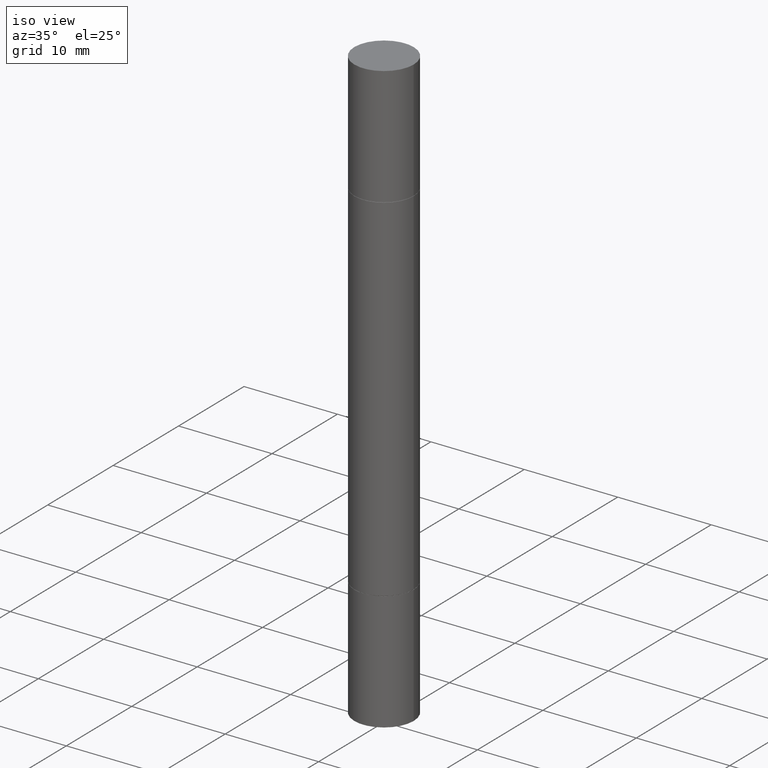
[diagram: clean part render]
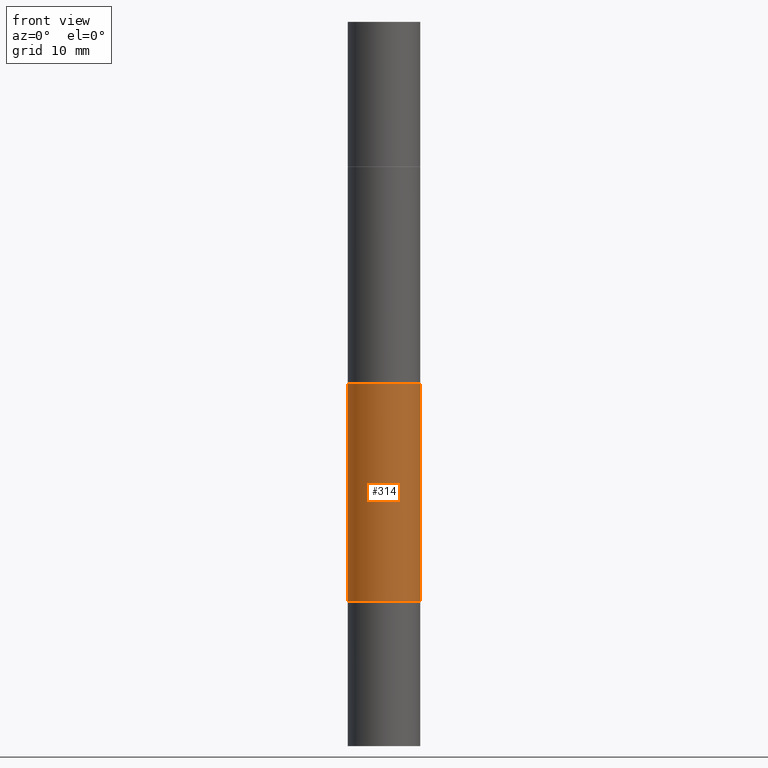
[diagram: tour spotlight — one face highlighted and labeled with its STEP entity id]
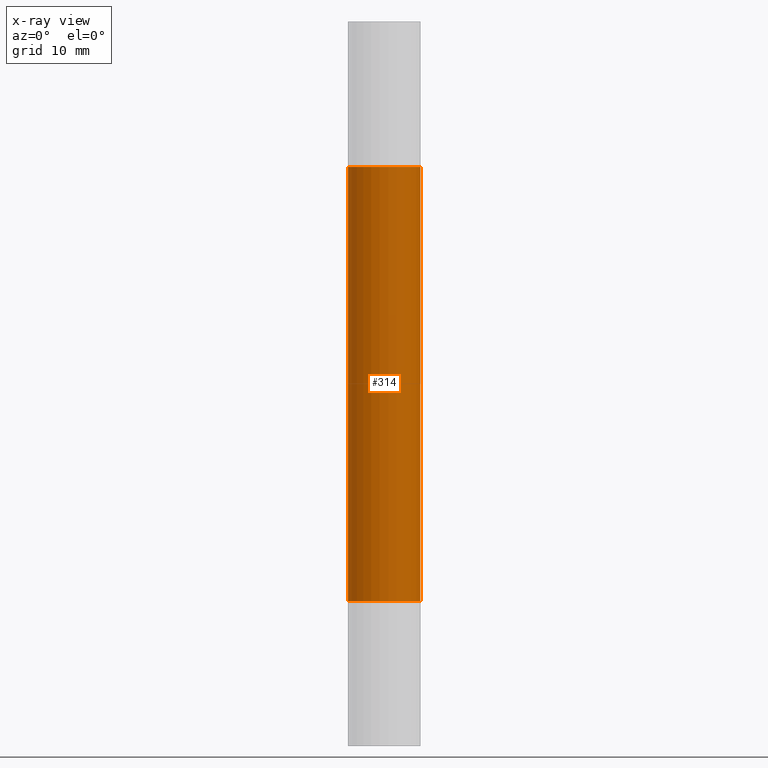
[diagram: x-ray of the same camera — body ghosted, this tour face saturated]
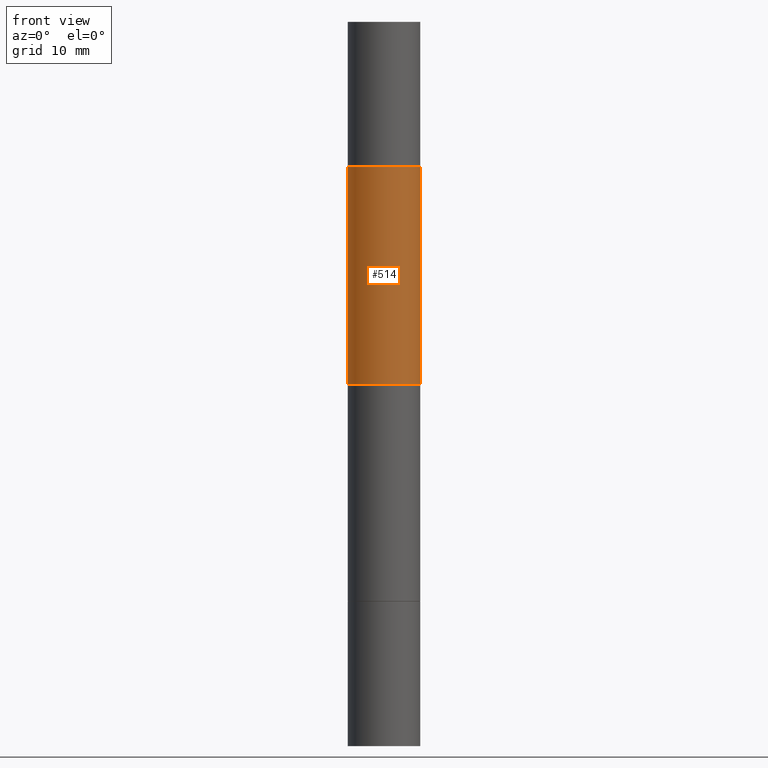
[diagram: tour spotlight — one face highlighted and labeled with its STEP entity id]
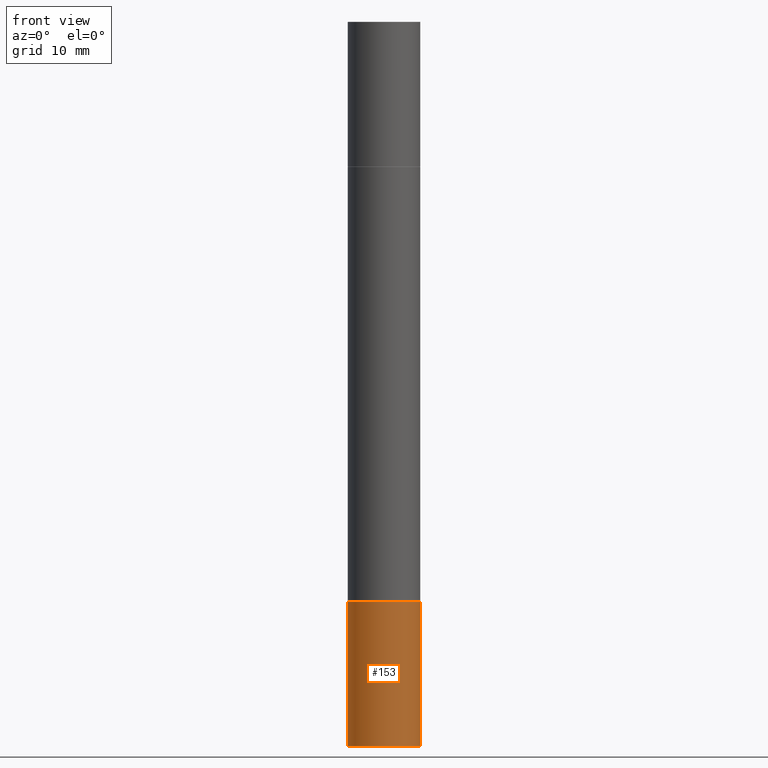
[diagram: tour spotlight — one face highlighted and labeled with its STEP entity id]
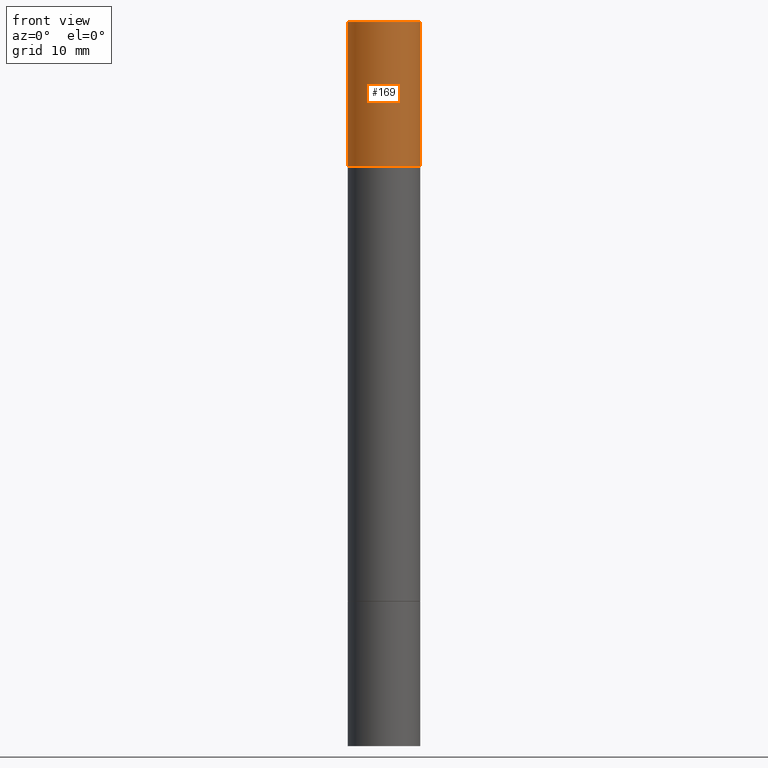
[diagram: tour spotlight — one face highlighted and labeled with its STEP entity id]
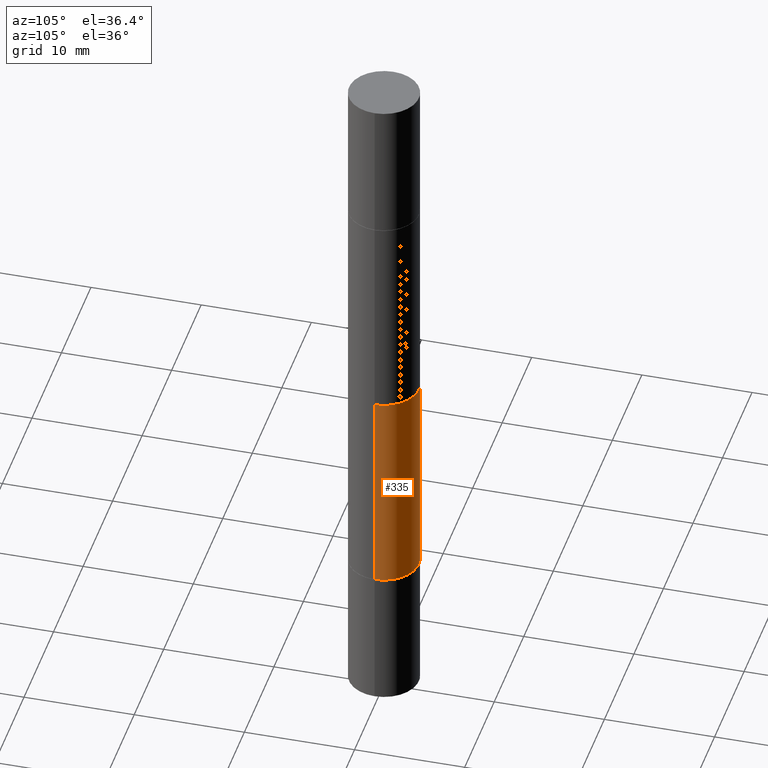
[diagram: tour spotlight — one face highlighted and labeled with its STEP entity id]
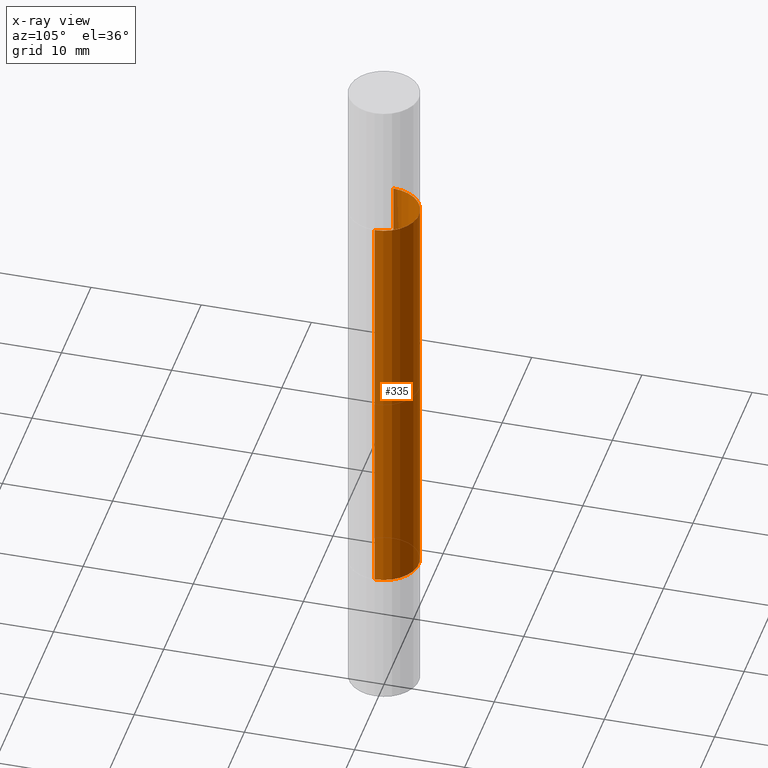
[diagram: x-ray of the same camera — body ghosted, this tour face saturated]
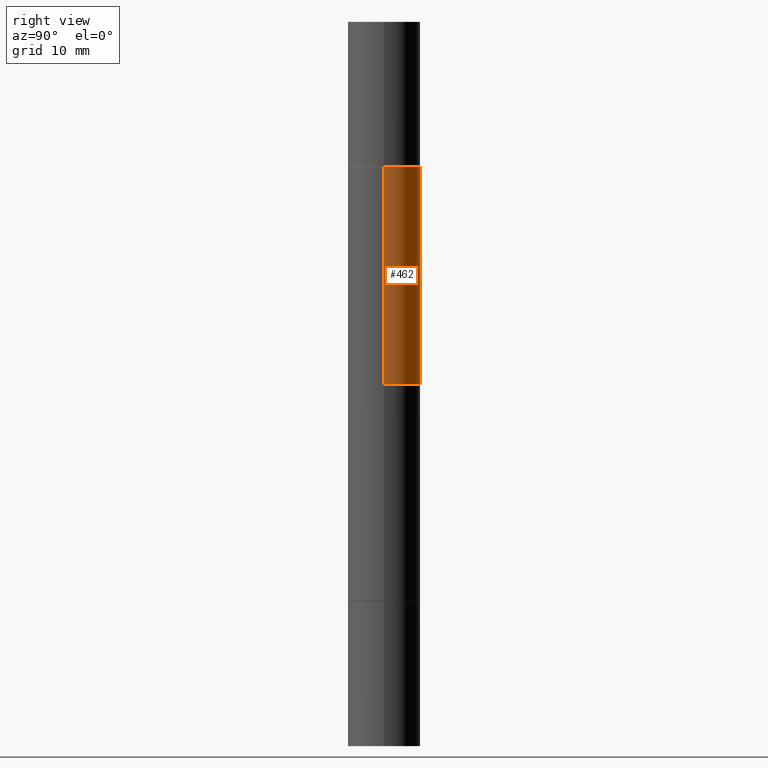
[diagram: tour spotlight — one face highlighted and labeled with its STEP entity id]
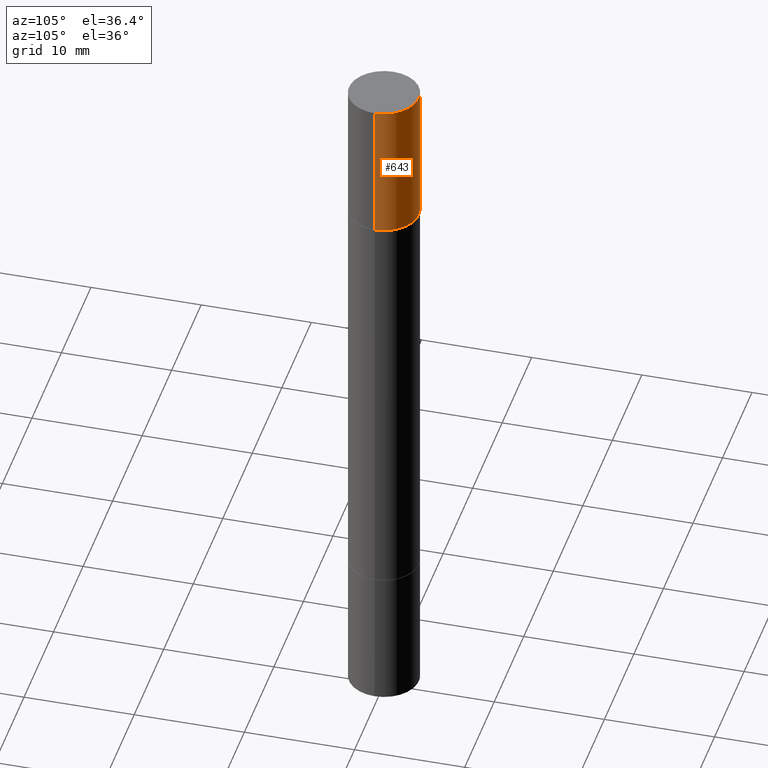
[diagram: tour spotlight — one face highlighted and labeled with its STEP entity id]
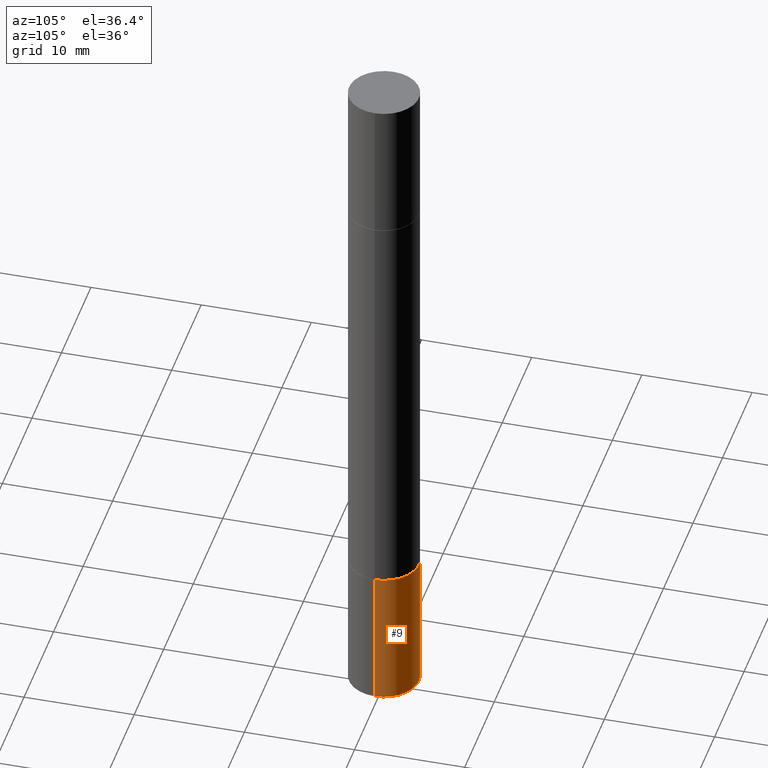
[diagram: tour spotlight — one face highlighted and labeled with its STEP entity id]
A machine part: a face-by-face anatomy tour. The part has 26 B-rep faces; the first image is the clean iso view, then the 8 largest visible faces are spotlighted one at a time (largest first), each with its STEP entity span.

Face 1 — front view, entity #314. An x-ray twin of the same camera follows (body ghosted, this face saturated) — the face is partly hidden behind the body. In plain terms, the highlighted cylindrical surface (edge-blend (fillet) strip) has radius 3.175 mm, axis along (-0, -0, -1).
Definition (entity closure, byte-faithful):
#4 = EDGE_CURVE ( 'NONE', #480, #491, #390, .T. ) ;
#13 = CIRCLE ( 'NONE', #577, 0.1249999999999999861 ) ;
#22 = DIRECTION ( 'NONE',  ( 1.000000000000000000, -6.982962677686263555E-15, 0.000000000000000000 ) ) ;
#26 = DIRECTION ( 'NONE',  ( 2.445468806185136597E-29, 3.492890411551752677E-15, 1.000000000000000000 ) ) ;
#32 = EDGE_CURVE ( 'NONE', #491, #293, #13, .T. ) ;
#35 = ORIENTED_EDGE ( 'NONE', *, *, #181, .F. ) ;
#42 = CARTESIAN_POINT ( 'NONE',  ( -0.1249999999999999861, -8.906145055802259979E-16, -0.5009999999999996678 ) ) ;
#43 = CARTESIAN_POINT ( 'NONE',  ( 4.888492143564087591E-29, -6.979471196347447369E-15, -1.998999999999999888 ) ) ;
#46 = CARTESIAN_POINT ( 'NONE',  ( 0.1249999999999999861, -2.621047090012450585E-15, -0.5009999999999996678 ) ) ;
#48 = EDGE_CURVE ( 'NONE', #480, #424, #520, .T. ) ;
#56 = CARTESIAN_POINT ( 'NONE',  ( 0.000000000000000000, -8.730464687993621641E-15, -2.499999999999999556 ) ) ;
#94 = DIRECTION ( 'NONE',  ( 1.000000000000000000, -6.982962677686267499E-15, 0.000000000000000000 ) ) ;
#118 = AXIS2_PLACEMENT_3D ( 'NONE', #431, #26, #94 ) ;
#122 = ORIENTED_EDGE ( 'NONE', *, *, #48, .F. ) ;
#132 = CARTESIAN_POINT ( 'NONE',  ( -0.1249999999999998612, -7.872902438272180196E-15, -2.499999999999999556 ) ) ;
#181 = EDGE_CURVE ( 'NONE', #424, #293, #256, .T. ) ;
#203 = DIRECTION ( 'NONE',  ( -2.445468806185136877E-29, -3.492890411551753071E-15, -1.000000000000000000 ) ) ;
#256 = LINE ( 'NONE', #411, #422 ) ;
#259 = EDGE_LOOP ( 'NONE', ( #122, #648, #608, #35 ) ) ;
#293 = VERTEX_POINT ( 'NONE', #658 ) ;
#310 = DIRECTION ( 'NONE',  ( -2.445468806185136597E-29, -3.492890411551752677E-15, -1.000000000000000000 ) ) ;
#314 = ADVANCED_FACE ( 'NONE', ( #448 ), #669, .T. ) ;
#315 = DIRECTION ( 'NONE',  ( 1.000000000000000000, -6.982962677686262766E-15, 0.000000000000000000 ) ) ;
#390 = LINE ( 'NONE', #132, #611 ) ;
#411 = CARTESIAN_POINT ( 'NONE',  ( 0.1249999999999998612, -9.603335022704403402E-15, -2.499999999999999556 ) ) ;
#422 = VECTOR ( 'NONE', #203, 39.37007874015748143 ) ;
#424 = VERTEX_POINT ( 'NONE', #46 ) ;
#431 = CARTESIAN_POINT ( 'NONE',  ( 4.888492143564087591E-29, -1.748176755301667838E-15, -0.5009999999999996678 ) ) ;
#448 = FACE_OUTER_BOUND ( 'NONE', #259, .T. ) ;
#455 = CARTESIAN_POINT ( 'NONE',  ( -0.1249999999999999861, -3.506789423832488265E-15, -1.998999999999999888 ) ) ;
#480 = VERTEX_POINT ( 'NONE', #42 ) ;
#488 = DIRECTION ( 'NONE',  ( -2.445468806185136597E-29, 3.491481338843145583E-15, 1.000000000000000000 ) ) ;
#491 = VERTEX_POINT ( 'NONE', #455 ) ;
#520 = CIRCLE ( 'NONE', #118, 0.1249999999999999861 ) ;
#577 = AXIS2_PLACEMENT_3D ( 'NONE', #43, #488, #22 ) ;
#608 = ORIENTED_EDGE ( 'NONE', *, *, #32, .T. ) ;
#611 = VECTOR ( 'NONE', #618, 39.37007874015748143 ) ;
#618 = DIRECTION ( 'NONE',  ( -2.445468806185136877E-29, -3.492890411551753071E-15, -1.000000000000000000 ) ) ;
#634 = AXIS2_PLACEMENT_3D ( 'NONE', #56, #310, #315 ) ;
#648 = ORIENTED_EDGE ( 'NONE', *, *, #4, .T. ) ;
#658 = CARTESIAN_POINT ( 'NONE',  ( 0.1249999999999999861, -7.852341531058230708E-15, -1.998999999999999888 ) ) ;
#669 = CYLINDRICAL_SURFACE ( 'NONE', #634, 0.1249999999999998612 ) ;

Face 2 — front view, entity #514. In plain terms, the highlighted cylindrical surface (edge-blend (fillet) strip) has radius 3.175 mm, axis along (-0, -0, -1).
Definition (entity closure, byte-faithful):
#20 = CARTESIAN_POINT ( 'NONE',  ( 4.888492143564087591E-29, -1.748176755301667838E-15, -0.5009999999999996678 ) ) ;
#45 = AXIS2_PLACEMENT_3D ( 'NONE', #453, #665, #464 ) ;
#58 = AXIS2_PLACEMENT_3D ( 'NONE', #142, #620, #144 ) ;
#76 = EDGE_CURVE ( 'NONE', #323, #426, #680, .T. ) ;
#88 = DIRECTION ( 'NONE',  ( -2.445468806185136877E-29, -3.492890411551753071E-15, -1.000000000000000000 ) ) ;
#102 = CARTESIAN_POINT ( 'NONE',  ( -0.1249999999999998612, -2.198701964706358019E-15, -1.249999999999999778 ) ) ;
#103 = CARTESIAN_POINT ( 'NONE',  ( 0.1249999999999999861, -2.621047090012450585E-15, -0.5009999999999996678 ) ) ;
#142 = CARTESIAN_POINT ( 'NONE',  ( 0.000000000000000000, -8.730464687993621641E-15, -2.499999999999999556 ) ) ;
#144 = DIRECTION ( 'NONE',  ( 1.000000000000000000, -6.982962677686262766E-15, 0.000000000000000000 ) ) ;
#175 = EDGE_LOOP ( 'NONE', ( #473, #236, #222, #636 ) ) ;
#191 = VERTEX_POINT ( 'NONE', #103 ) ;
#200 = CARTESIAN_POINT ( 'NONE',  ( -0.1249999999999998612, -7.872902438272180196E-15, -2.499999999999999556 ) ) ;
#207 = CIRCLE ( 'NONE', #564, 0.1249999999999999861 ) ;
#222 = ORIENTED_EDGE ( 'NONE', *, *, #388, .F. ) ;
#236 = ORIENTED_EDGE ( 'NONE', *, *, #76, .T. ) ;
#252 = FACE_OUTER_BOUND ( 'NONE', #175, .T. ) ;
#287 = DIRECTION ( 'NONE',  ( 1.000000000000000000, -6.982962677686267499E-15, 0.000000000000000000 ) ) ;
#288 = EDGE_CURVE ( 'NONE', #191, #570, #551, .T. ) ;
#323 = VERTEX_POINT ( 'NONE', #430 ) ;
#331 = DIRECTION ( 'NONE',  ( 2.445468806185136597E-29, 3.492890411551752677E-15, 1.000000000000000000 ) ) ;
#357 = EDGE_CURVE ( 'NONE', #323, #191, #207, .T. ) ;
#388 = EDGE_CURVE ( 'NONE', #570, #426, #510, .T. ) ;
#408 = CARTESIAN_POINT ( 'NONE',  ( 0.1249999999999998612, -3.929134549138581225E-15, -1.249999999999999778 ) ) ;
#426 = VERTEX_POINT ( 'NONE', #102 ) ;
#430 = CARTESIAN_POINT ( 'NONE',  ( -0.1249999999999999861, -8.906145055802259979E-16, -0.5009999999999996678 ) ) ;
#449 = VECTOR ( 'NONE', #519, 39.37007874015748143 ) ;
#453 = CARTESIAN_POINT ( 'NONE',  ( 3.056836007731420185E-29, -4.364351673553931682E-15, -1.249999999999999778 ) ) ;
#464 = DIRECTION ( 'NONE',  ( 0.000000000000000000, 1.000000000000000000, -4.370956789862825883E-15 ) ) ;
#473 = ORIENTED_EDGE ( 'NONE', *, *, #357, .F. ) ;
#499 = CARTESIAN_POINT ( 'NONE',  ( 0.1249999999999998612, -9.603335022704403402E-15, -2.499999999999999556 ) ) ;
#510 = CIRCLE ( 'NONE', #45, 0.1249999999999998612 ) ;
#514 = ADVANCED_FACE ( 'NONE', ( #252 ), #561, .T. ) ;
#519 = DIRECTION ( 'NONE',  ( -2.445468806185136877E-29, -3.492890411551753071E-15, -1.000000000000000000 ) ) ;
#551 = LINE ( 'NONE', #499, #663 ) ;
#561 = CYLINDRICAL_SURFACE ( 'NONE', #58, 0.1249999999999998612 ) ;
#564 = AXIS2_PLACEMENT_3D ( 'NONE', #20, #331, #287 ) ;
#570 = VERTEX_POINT ( 'NONE', #408 ) ;
#620 = DIRECTION ( 'NONE',  ( -2.445468806185136597E-29, -3.492890411551752677E-15, -1.000000000000000000 ) ) ;
#636 = ORIENTED_EDGE ( 'NONE', *, *, #288, .F. ) ;
#663 = VECTOR ( 'NONE', #88, 39.37007874015748143 ) ;
#665 = DIRECTION ( 'NONE',  ( -0.000000000000000000, -3.492185875197449130E-15, -1.000000000000000000 ) ) ;
#680 = LINE ( 'NONE', #200, #449 ) ;

Face 3 — front view, entity #153. In plain terms, the highlighted cylindrical surface (edge-blend (fillet) strip) has radius 3.175 mm, axis along (-0, 0, 1).
Definition (entity closure, byte-faithful):
#61 = EDGE_CURVE ( 'NONE', #585, #344, #498, .T. ) ;
#69 = DIRECTION ( 'NONE',  ( 1.000000000000000000, -6.982962677686270655E-15, 0.000000000000000000 ) ) ;
#75 = CARTESIAN_POINT ( 'NONE',  ( 0.1250000000000000000, -8.728703347107833388E-16, 6.095220969744919741E-30 ) ) ;
#85 = DIRECTION ( 'NONE',  ( -2.445468806185136877E-29, 3.491481338843145188E-15, 1.000000000000000000 ) ) ;
#92 = CARTESIAN_POINT ( 'NONE',  ( -0.1250000000000000000, -6.967654592696952427E-15, -2.000000000000000000 ) ) ;
#111 = CARTESIAN_POINT ( 'NONE',  ( 0.000000000000000000, 0.000000000000000000, 0.000000000000000000 ) ) ;
#117 = EDGE_CURVE ( 'NONE', #344, #351, #495, .T. ) ;
#127 = ORIENTED_EDGE ( 'NONE', *, *, #278, .T. ) ;
#153 = ADVANCED_FACE ( 'NONE', ( #353 ), #629, .T. ) ;
#159 = AXIS2_PLACEMENT_3D ( 'NONE', #211, #531, #69 ) ;
#166 = CIRCLE ( 'NONE', #159, 0.1250000000000000000 ) ;
#178 = CARTESIAN_POINT ( 'NONE',  ( -0.1250000000000000000, 8.881784197001252323E-16, -6.148668862818632227E-30 ) ) ;
#195 = CARTESIAN_POINT ( 'NONE',  ( 0.1250000000000000000, -9.601573681818648281E-15, -2.500000000000000000 ) ) ;
#211 = CARTESIAN_POINT ( 'NONE',  ( 6.113672015462842613E-29, -8.728703347107864943E-15, -2.500000000000000000 ) ) ;
#231 = DIRECTION ( 'NONE',  ( -2.445468806185136877E-29, 3.491481338843145188E-15, 1.000000000000000000 ) ) ;
#265 = EDGE_CURVE ( 'NONE', #532, #351, #537, .T. ) ;
#278 = EDGE_CURVE ( 'NONE', #585, #532, #166, .T. ) ;
#334 = ORIENTED_EDGE ( 'NONE', *, *, #117, .F. ) ;
#344 = VERTEX_POINT ( 'NONE', #92 ) ;
#351 = VERTEX_POINT ( 'NONE', #494 ) ;
#353 = FACE_OUTER_BOUND ( 'NONE', #392, .T. ) ;
#373 = CARTESIAN_POINT ( 'NONE',  ( -0.1250000000000000000, -6.967654592696952427E-15, -2.500000000000000000 ) ) ;
#378 = ORIENTED_EDGE ( 'NONE', *, *, #265, .T. ) ;
#392 = EDGE_LOOP ( 'NONE', ( #517, #127, #378, #334 ) ) ;
#434 = AXIS2_PLACEMENT_3D ( 'NONE', #626, #562, #454 ) ;
#454 = DIRECTION ( 'NONE',  ( 1.000000000000000000, -6.982962677686270655E-15, 0.000000000000000000 ) ) ;
#494 = CARTESIAN_POINT ( 'NONE',  ( 0.1250000000000000000, -7.855833012397075293E-15, -2.000000000000000000 ) ) ;
#495 = CIRCLE ( 'NONE', #434, 0.1250000000000000000 ) ;
#498 = LINE ( 'NONE', #178, #552 ) ;
#517 = ORIENTED_EDGE ( 'NONE', *, *, #61, .F. ) ;
#531 = DIRECTION ( 'NONE',  ( -2.445468806185136597E-29, 3.491481338843145583E-15, 1.000000000000000000 ) ) ;
#532 = VERTEX_POINT ( 'NONE', #195 ) ;
#537 = LINE ( 'NONE', #75, #672 ) ;
#552 = VECTOR ( 'NONE', #231, 39.37007874015748143 ) ;
#562 = DIRECTION ( 'NONE',  ( -2.445468806185136597E-29, 3.491481338843145583E-15, 1.000000000000000000 ) ) ;
#567 = DIRECTION ( 'NONE',  ( -2.445468806185136597E-29, 3.491481338843145583E-15, 1.000000000000000000 ) ) ;
#569 = DIRECTION ( 'NONE',  ( 1.000000000000000000, -6.982962677686266711E-15, 4.876176775795935793E-29 ) ) ;
#585 = VERTEX_POINT ( 'NONE', #373 ) ;
#623 = AXIS2_PLACEMENT_3D ( 'NONE', #111, #567, #569 ) ;
#626 = CARTESIAN_POINT ( 'NONE',  ( 4.890937612370273194E-29, -6.982962677686291165E-15, -2.000000000000000000 ) ) ;
#629 = CYLINDRICAL_SURFACE ( 'NONE', #623, 0.1250000000000000000 ) ;
#672 = VECTOR ( 'NONE', #85, 39.37007874015748143 ) ;

Face 4 — front view, entity #169. In plain terms, the highlighted cylindrical surface (edge-blend (fillet) strip) has radius 3.175 mm, axis along (-0, -0, -1).
Definition (entity closure, byte-faithful):
#2 = AXIS2_PLACEMENT_3D ( 'NONE', #516, #297, #671 ) ;
#51 = LINE ( 'NONE', #398, #322 ) ;
#67 = VERTEX_POINT ( 'NONE', #337 ) ;
#87 = ORIENTED_EDGE ( 'NONE', *, *, #527, .T. ) ;
#149 = CARTESIAN_POINT ( 'NONE',  ( 0.1250000000000000000, -2.617554199600898443E-15, -0.4999999999999996114 ) ) ;
#151 = FACE_OUTER_BOUND ( 'NONE', #437, .T. ) ;
#165 = VERTEX_POINT ( 'NONE', #249 ) ;
#169 = ADVANCED_FACE ( 'NONE', ( #151 ), #466, .T. ) ;
#184 = CARTESIAN_POINT ( 'NONE',  ( -0.1250000000000000000, -7.872902438272180196E-15, -2.499999999999999556 ) ) ;
#202 = DIRECTION ( 'NONE',  ( 1.000000000000000000, -6.982962677686266711E-15, 0.000000000000000000 ) ) ;
#249 = CARTESIAN_POINT ( 'NONE',  ( 0.1250000000000000000, -8.711089938250227947E-16, 5.463695987328526437E-16 ) ) ;
#297 = DIRECTION ( 'NONE',  ( -2.445468806185136597E-29, -3.492890411551752677E-15, -1.000000000000000000 ) ) ;
#300 = DIRECTION ( 'NONE',  ( 2.445468806185136597E-29, 3.492890411551752677E-15, 1.000000000000000000 ) ) ;
#322 = VECTOR ( 'NONE', #670, 39.37007874015748143 ) ;
#327 = ORIENTED_EDGE ( 'NONE', *, *, #470, .T. ) ;
#337 = CARTESIAN_POINT ( 'NONE',  ( -0.1250000000000000000, -1.389901228073636467E-17, 5.463695987328557991E-16 ) ) ;
#350 = DIRECTION ( 'NONE',  ( -2.445468806185136877E-29, -3.492890411551753071E-15, -1.000000000000000000 ) ) ;
#376 = CIRCLE ( 'NONE', #602, 0.1250000000000000000 ) ;
#395 = CARTESIAN_POINT ( 'NONE',  ( 4.890937612370273194E-29, -1.744683864890115301E-15, -0.4999999999999996114 ) ) ;
#398 = CARTESIAN_POINT ( 'NONE',  ( 0.1250000000000000000, -9.603335022704404980E-15, -2.499999999999999556 ) ) ;
#415 = CARTESIAN_POINT ( 'NONE',  ( -0.1250000000000000000, -1.389901228073636467E-17, -0.4999999999999996114 ) ) ;
#437 = EDGE_LOOP ( 'NONE', ( #609, #327, #87, #635 ) ) ;
#463 = VECTOR ( 'NONE', #350, 39.37007874015748143 ) ;
#466 = CYLINDRICAL_SURFACE ( 'NONE', #2, 0.1250000000000000000 ) ;
#470 = EDGE_CURVE ( 'NONE', #67, #662, #558, .T. ) ;
#497 = EDGE_CURVE ( 'NONE', #165, #555, #51, .T. ) ;
#511 = CARTESIAN_POINT ( 'NONE',  ( 6.113672015462842613E-29, 1.761340885760521790E-18, 5.463695987328526437E-16 ) ) ;
#512 = DIRECTION ( 'NONE',  ( 1.000000000000000000, -6.982962677686266711E-15, 0.000000000000000000 ) ) ;
#516 = CARTESIAN_POINT ( 'NONE',  ( 0.000000000000000000, -8.730464687993621641E-15, -2.499999999999999556 ) ) ;
#527 = EDGE_CURVE ( 'NONE', #662, #555, #376, .T. ) ;
#555 = VERTEX_POINT ( 'NONE', #149 ) ;
#558 = LINE ( 'NONE', #184, #463 ) ;
#571 = EDGE_CURVE ( 'NONE', #67, #165, #614, .T. ) ;
#575 = DIRECTION ( 'NONE',  ( 2.445468806185136597E-29, 3.492890411551752677E-15, 1.000000000000000000 ) ) ;
#590 = AXIS2_PLACEMENT_3D ( 'NONE', #511, #575, #202 ) ;
#602 = AXIS2_PLACEMENT_3D ( 'NONE', #395, #300, #512 ) ;
#609 = ORIENTED_EDGE ( 'NONE', *, *, #571, .F. ) ;
#614 = CIRCLE ( 'NONE', #590, 0.1250000000000000000 ) ;
#635 = ORIENTED_EDGE ( 'NONE', *, *, #497, .F. ) ;
#662 = VERTEX_POINT ( 'NONE', #415 ) ;
#670 = DIRECTION ( 'NONE',  ( -2.445468806185136877E-29, -3.492890411551753071E-15, -1.000000000000000000 ) ) ;
#671 = DIRECTION ( 'NONE',  ( 1.000000000000000000, -6.982962677686270655E-15, 0.000000000000000000 ) ) ;

Face 5 — auxiliary view, entity #335. An x-ray twin of the same camera follows (body ghosted, this face saturated) — the face is partly hidden behind the body. In plain terms, the highlighted cylindrical surface (edge-blend (fillet) strip) has radius 3.175 mm, axis along (-0, -0, -1).
Definition (entity closure, byte-faithful):
#4 = EDGE_CURVE ( 'NONE', #480, #491, #390, .T. ) ;
#38 = EDGE_CURVE ( 'NONE', #293, #491, #137, .T. ) ;
#39 = FACE_OUTER_BOUND ( 'NONE', #391, .T. ) ;
#42 = CARTESIAN_POINT ( 'NONE',  ( -0.1249999999999999861, -8.906145055802259979E-16, -0.5009999999999996678 ) ) ;
#46 = CARTESIAN_POINT ( 'NONE',  ( 0.1249999999999999861, -2.621047090012450585E-15, -0.5009999999999996678 ) ) ;
#55 = DIRECTION ( 'NONE',  ( 1.000000000000000000, -6.982962677686267499E-15, 0.000000000000000000 ) ) ;
#124 = DIRECTION ( 'NONE',  ( 1.000000000000000000, -6.982962677686262766E-15, 0.000000000000000000 ) ) ;
#128 = AXIS2_PLACEMENT_3D ( 'NONE', #382, #659, #124 ) ;
#132 = CARTESIAN_POINT ( 'NONE',  ( -0.1249999999999998612, -7.872902438272180196E-15, -2.499999999999999556 ) ) ;
#133 = CYLINDRICAL_SURFACE ( 'NONE', #128, 0.1249999999999998612 ) ;
#136 = DIRECTION ( 'NONE',  ( 1.000000000000000000, -6.982962677686263555E-15, 0.000000000000000000 ) ) ;
#137 = CIRCLE ( 'NONE', #579, 0.1249999999999999861 ) ;
#155 = EDGE_CURVE ( 'NONE', #424, #480, #187, .T. ) ;
#181 = EDGE_CURVE ( 'NONE', #424, #293, #256, .T. ) ;
#187 = CIRCLE ( 'NONE', #468, 0.1249999999999999861 ) ;
#203 = DIRECTION ( 'NONE',  ( -2.445468806185136877E-29, -3.492890411551753071E-15, -1.000000000000000000 ) ) ;
#256 = LINE ( 'NONE', #411, #422 ) ;
#264 = ORIENTED_EDGE ( 'NONE', *, *, #181, .T. ) ;
#283 = DIRECTION ( 'NONE',  ( -2.445468806185136597E-29, 3.491481338843145583E-15, 1.000000000000000000 ) ) ;
#289 = CARTESIAN_POINT ( 'NONE',  ( 4.888492143564087591E-29, -6.979471196347447369E-15, -1.998999999999999888 ) ) ;
#293 = VERTEX_POINT ( 'NONE', #658 ) ;
#335 = ADVANCED_FACE ( 'NONE', ( #39 ), #133, .T. ) ;
#362 = CARTESIAN_POINT ( 'NONE',  ( 4.888492143564087591E-29, -1.748176755301667838E-15, -0.5009999999999996678 ) ) ;
#382 = CARTESIAN_POINT ( 'NONE',  ( 0.000000000000000000, -8.730464687993621641E-15, -2.499999999999999556 ) ) ;
#390 = LINE ( 'NONE', #132, #611 ) ;
#391 = EDGE_LOOP ( 'NONE', ( #592, #419, #264, #505 ) ) ;
#411 = CARTESIAN_POINT ( 'NONE',  ( 0.1249999999999998612, -9.603335022704403402E-15, -2.499999999999999556 ) ) ;
#419 = ORIENTED_EDGE ( 'NONE', *, *, #155, .F. ) ;
#422 = VECTOR ( 'NONE', #203, 39.37007874015748143 ) ;
#424 = VERTEX_POINT ( 'NONE', #46 ) ;
#455 = CARTESIAN_POINT ( 'NONE',  ( -0.1249999999999999861, -3.506789423832488265E-15, -1.998999999999999888 ) ) ;
#468 = AXIS2_PLACEMENT_3D ( 'NONE', #362, #523, #55 ) ;
#480 = VERTEX_POINT ( 'NONE', #42 ) ;
#491 = VERTEX_POINT ( 'NONE', #455 ) ;
#505 = ORIENTED_EDGE ( 'NONE', *, *, #38, .T. ) ;
#523 = DIRECTION ( 'NONE',  ( 2.445468806185136597E-29, 3.492890411551752677E-15, 1.000000000000000000 ) ) ;
#579 = AXIS2_PLACEMENT_3D ( 'NONE', #289, #283, #136 ) ;
#592 = ORIENTED_EDGE ( 'NONE', *, *, #4, .F. ) ;
#611 = VECTOR ( 'NONE', #618, 39.37007874015748143 ) ;
#618 = DIRECTION ( 'NONE',  ( -2.445468806185136877E-29, -3.492890411551753071E-15, -1.000000000000000000 ) ) ;
#658 = CARTESIAN_POINT ( 'NONE',  ( 0.1249999999999999861, -7.852341531058230708E-15, -1.998999999999999888 ) ) ;
#659 = DIRECTION ( 'NONE',  ( -2.445468806185136597E-29, -3.492890411551752677E-15, -1.000000000000000000 ) ) ;

Face 6 — right view, entity #462. In plain terms, the highlighted cylindrical surface (edge-blend (fillet) strip) has radius 3.175 mm, axis along (-0, -0, -1).
Definition (entity closure, byte-faithful):
#76 = EDGE_CURVE ( 'NONE', #323, #426, #680, .T. ) ;
#88 = DIRECTION ( 'NONE',  ( -2.445468806185136877E-29, -3.492890411551753071E-15, -1.000000000000000000 ) ) ;
#95 = ORIENTED_EDGE ( 'NONE', *, *, #288, .T. ) ;
#97 = CYLINDRICAL_SURFACE ( 'NONE', #452, 0.1249999999999998612 ) ;
#99 = ORIENTED_EDGE ( 'NONE', *, *, #76, .F. ) ;
#102 = CARTESIAN_POINT ( 'NONE',  ( -0.1249999999999998612, -2.198701964706358019E-15, -1.249999999999999778 ) ) ;
#103 = CARTESIAN_POINT ( 'NONE',  ( 0.1249999999999999861, -2.621047090012450585E-15, -0.5009999999999996678 ) ) ;
#105 = DIRECTION ( 'NONE',  ( -0.000000000000000000, -3.492185875197449130E-15, -1.000000000000000000 ) ) ;
#116 = EDGE_LOOP ( 'NONE', ( #99, #368, #95, #641 ) ) ;
#147 = CIRCLE ( 'NONE', #484, 0.1249999999999998612 ) ;
#191 = VERTEX_POINT ( 'NONE', #103 ) ;
#200 = CARTESIAN_POINT ( 'NONE',  ( -0.1249999999999998612, -7.872902438272180196E-15, -2.499999999999999556 ) ) ;
#248 = DIRECTION ( 'NONE',  ( 1.000000000000000000, -6.982962677686262766E-15, 0.000000000000000000 ) ) ;
#269 = DIRECTION ( 'NONE',  ( 2.445468806185136597E-29, 3.492890411551752677E-15, 1.000000000000000000 ) ) ;
#288 = EDGE_CURVE ( 'NONE', #191, #570, #551, .T. ) ;
#296 = CARTESIAN_POINT ( 'NONE',  ( 0.000000000000000000, -8.730464687993621641E-15, -2.499999999999999556 ) ) ;
#323 = VERTEX_POINT ( 'NONE', #430 ) ;
#345 = AXIS2_PLACEMENT_3D ( 'NONE', #369, #269, #586 ) ;
#352 = CARTESIAN_POINT ( 'NONE',  ( 3.056836007731420185E-29, -4.364351673553931682E-15, -1.249999999999999778 ) ) ;
#368 = ORIENTED_EDGE ( 'NONE', *, *, #627, .F. ) ;
#369 = CARTESIAN_POINT ( 'NONE',  ( 4.888492143564087591E-29, -1.748176755301667838E-15, -0.5009999999999996678 ) ) ;
#408 = CARTESIAN_POINT ( 'NONE',  ( 0.1249999999999998612, -3.929134549138581225E-15, -1.249999999999999778 ) ) ;
#426 = VERTEX_POINT ( 'NONE', #102 ) ;
#430 = CARTESIAN_POINT ( 'NONE',  ( -0.1249999999999999861, -8.906145055802259979E-16, -0.5009999999999996678 ) ) ;
#449 = VECTOR ( 'NONE', #519, 39.37007874015748143 ) ;
#452 = AXIS2_PLACEMENT_3D ( 'NONE', #296, #508, #248 ) ;
#462 = ADVANCED_FACE ( 'NONE', ( #667 ), #97, .T. ) ;
#484 = AXIS2_PLACEMENT_3D ( 'NONE', #352, #105, #573 ) ;
#499 = CARTESIAN_POINT ( 'NONE',  ( 0.1249999999999998612, -9.603335022704403402E-15, -2.499999999999999556 ) ) ;
#508 = DIRECTION ( 'NONE',  ( -2.445468806185136597E-29, -3.492890411551752677E-15, -1.000000000000000000 ) ) ;
#519 = DIRECTION ( 'NONE',  ( -2.445468806185136877E-29, -3.492890411551753071E-15, -1.000000000000000000 ) ) ;
#524 = EDGE_CURVE ( 'NONE', #426, #570, #147, .T. ) ;
#551 = LINE ( 'NONE', #499, #663 ) ;
#565 = CIRCLE ( 'NONE', #345, 0.1249999999999999861 ) ;
#570 = VERTEX_POINT ( 'NONE', #408 ) ;
#573 = DIRECTION ( 'NONE',  ( 0.000000000000000000, 1.000000000000000000, -4.370956789862825883E-15 ) ) ;
#586 = DIRECTION ( 'NONE',  ( 1.000000000000000000, -6.982962677686267499E-15, 0.000000000000000000 ) ) ;
#627 = EDGE_CURVE ( 'NONE', #191, #323, #565, .T. ) ;
#641 = ORIENTED_EDGE ( 'NONE', *, *, #524, .F. ) ;
#663 = VECTOR ( 'NONE', #88, 39.37007874015748143 ) ;
#667 = FACE_OUTER_BOUND ( 'NONE', #116, .T. ) ;
#680 = LINE ( 'NONE', #200, #449 ) ;

Face 7 — auxiliary view, entity #643. In plain terms, the highlighted cylindrical surface (edge-blend (fillet) strip) has radius 3.175 mm, axis along (-0, -0, -1).
Definition (entity closure, byte-faithful):
#1 = CYLINDRICAL_SURFACE ( 'NONE', #407, 0.1250000000000000000 ) ;
#6 = FACE_OUTER_BOUND ( 'NONE', #273, .T. ) ;
#28 = CIRCLE ( 'NONE', #261, 0.1250000000000000000 ) ;
#51 = LINE ( 'NONE', #398, #322 ) ;
#67 = VERTEX_POINT ( 'NONE', #337 ) ;
#123 = CARTESIAN_POINT ( 'NONE',  ( 0.000000000000000000, -8.730464687993621641E-15, -2.499999999999999556 ) ) ;
#149 = CARTESIAN_POINT ( 'NONE',  ( 0.1250000000000000000, -2.617554199600898443E-15, -0.4999999999999996114 ) ) ;
#165 = VERTEX_POINT ( 'NONE', #249 ) ;
#184 = CARTESIAN_POINT ( 'NONE',  ( -0.1250000000000000000, -7.872902438272180196E-15, -2.499999999999999556 ) ) ;
#205 = DIRECTION ( 'NONE',  ( 2.445468806185136597E-29, 3.492890411551752677E-15, 1.000000000000000000 ) ) ;
#249 = CARTESIAN_POINT ( 'NONE',  ( 0.1250000000000000000, -8.711089938250227947E-16, 5.463695987328526437E-16 ) ) ;
#258 = EDGE_CURVE ( 'NONE', #165, #67, #461, .T. ) ;
#261 = AXIS2_PLACEMENT_3D ( 'NONE', #474, #205, #536 ) ;
#262 = ORIENTED_EDGE ( 'NONE', *, *, #583, .T. ) ;
#263 = DIRECTION ( 'NONE',  ( 1.000000000000000000, -6.982962677686270655E-15, 0.000000000000000000 ) ) ;
#273 = EDGE_LOOP ( 'NONE', ( #631, #657, #616, #262 ) ) ;
#322 = VECTOR ( 'NONE', #670, 39.37007874015748143 ) ;
#336 = DIRECTION ( 'NONE',  ( 2.445468806185136597E-29, 3.492890411551752677E-15, 1.000000000000000000 ) ) ;
#337 = CARTESIAN_POINT ( 'NONE',  ( -0.1250000000000000000, -1.389901228073636467E-17, 5.463695987328557991E-16 ) ) ;
#350 = DIRECTION ( 'NONE',  ( -2.445468806185136877E-29, -3.492890411551753071E-15, -1.000000000000000000 ) ) ;
#380 = CARTESIAN_POINT ( 'NONE',  ( 6.113672015462842613E-29, 1.761340885760521790E-18, 5.463695987328526437E-16 ) ) ;
#383 = AXIS2_PLACEMENT_3D ( 'NONE', #380, #336, #544 ) ;
#398 = CARTESIAN_POINT ( 'NONE',  ( 0.1250000000000000000, -9.603335022704404980E-15, -2.499999999999999556 ) ) ;
#407 = AXIS2_PLACEMENT_3D ( 'NONE', #123, #482, #263 ) ;
#415 = CARTESIAN_POINT ( 'NONE',  ( -0.1250000000000000000, -1.389901228073636467E-17, -0.4999999999999996114 ) ) ;
#461 = CIRCLE ( 'NONE', #383, 0.1250000000000000000 ) ;
#463 = VECTOR ( 'NONE', #350, 39.37007874015748143 ) ;
#470 = EDGE_CURVE ( 'NONE', #67, #662, #558, .T. ) ;
#474 = CARTESIAN_POINT ( 'NONE',  ( 4.890937612370273194E-29, -1.744683864890115301E-15, -0.4999999999999996114 ) ) ;
#482 = DIRECTION ( 'NONE',  ( -2.445468806185136597E-29, -3.492890411551752677E-15, -1.000000000000000000 ) ) ;
#497 = EDGE_CURVE ( 'NONE', #165, #555, #51, .T. ) ;
#536 = DIRECTION ( 'NONE',  ( 1.000000000000000000, -6.982962677686266711E-15, 0.000000000000000000 ) ) ;
#544 = DIRECTION ( 'NONE',  ( 1.000000000000000000, -6.982962677686266711E-15, 0.000000000000000000 ) ) ;
#555 = VERTEX_POINT ( 'NONE', #149 ) ;
#558 = LINE ( 'NONE', #184, #463 ) ;
#583 = EDGE_CURVE ( 'NONE', #555, #662, #28, .T. ) ;
#616 = ORIENTED_EDGE ( 'NONE', *, *, #497, .T. ) ;
#631 = ORIENTED_EDGE ( 'NONE', *, *, #470, .F. ) ;
#643 = ADVANCED_FACE ( 'NONE', ( #6 ), #1, .T. ) ;
#657 = ORIENTED_EDGE ( 'NONE', *, *, #258, .F. ) ;
#662 = VERTEX_POINT ( 'NONE', #415 ) ;
#670 = DIRECTION ( 'NONE',  ( -2.445468806185136877E-29, -3.492890411551753071E-15, -1.000000000000000000 ) ) ;

Face 8 — auxiliary view, entity #9. In plain terms, the highlighted cylindrical surface (edge-blend (fillet) strip) has radius 3.175 mm, axis along (-0, 0, 1).
Definition (entity closure, byte-faithful):
#9 = ADVANCED_FACE ( 'NONE', ( #603 ), #279, .T. ) ;
#57 = CIRCLE ( 'NONE', #216, 0.1250000000000000000 ) ;
#61 = EDGE_CURVE ( 'NONE', #585, #344, #498, .T. ) ;
#63 = DIRECTION ( 'NONE',  ( 1.000000000000000000, -6.982962677686270655E-15, 0.000000000000000000 ) ) ;
#75 = CARTESIAN_POINT ( 'NONE',  ( 0.1250000000000000000, -8.728703347107833388E-16, 6.095220969744919741E-30 ) ) ;
#85 = DIRECTION ( 'NONE',  ( -2.445468806185136877E-29, 3.491481338843145188E-15, 1.000000000000000000 ) ) ;
#91 = AXIS2_PLACEMENT_3D ( 'NONE', #107, #515, #63 ) ;
#92 = CARTESIAN_POINT ( 'NONE',  ( -0.1250000000000000000, -6.967654592696952427E-15, -2.000000000000000000 ) ) ;
#107 = CARTESIAN_POINT ( 'NONE',  ( 4.890937612370273194E-29, -6.982962677686291165E-15, -2.000000000000000000 ) ) ;
#178 = CARTESIAN_POINT ( 'NONE',  ( -0.1250000000000000000, 8.881784197001252323E-16, -6.148668862818632227E-30 ) ) ;
#183 = EDGE_CURVE ( 'NONE', #532, #585, #57, .T. ) ;
#195 = CARTESIAN_POINT ( 'NONE',  ( 0.1250000000000000000, -9.601573681818648281E-15, -2.500000000000000000 ) ) ;
#212 = ORIENTED_EDGE ( 'NONE', *, *, #265, .F. ) ;
#216 = AXIS2_PLACEMENT_3D ( 'NONE', #253, #460, #675 ) ;
#218 = ORIENTED_EDGE ( 'NONE', *, *, #61, .T. ) ;
#224 = CARTESIAN_POINT ( 'NONE',  ( 0.000000000000000000, 0.000000000000000000, 0.000000000000000000 ) ) ;
#231 = DIRECTION ( 'NONE',  ( -2.445468806185136877E-29, 3.491481338843145188E-15, 1.000000000000000000 ) ) ;
#253 = CARTESIAN_POINT ( 'NONE',  ( 6.113672015462842613E-29, -8.728703347107864943E-15, -2.500000000000000000 ) ) ;
#265 = EDGE_CURVE ( 'NONE', #532, #351, #537, .T. ) ;
#279 = CYLINDRICAL_SURFACE ( 'NONE', #481, 0.1250000000000000000 ) ;
#294 = ORIENTED_EDGE ( 'NONE', *, *, #557, .F. ) ;
#344 = VERTEX_POINT ( 'NONE', #92 ) ;
#349 = EDGE_LOOP ( 'NONE', ( #546, #218, #294, #212 ) ) ;
#351 = VERTEX_POINT ( 'NONE', #494 ) ;
#366 = CIRCLE ( 'NONE', #91, 0.1250000000000000000 ) ;
#373 = CARTESIAN_POINT ( 'NONE',  ( -0.1250000000000000000, -6.967654592696952427E-15, -2.500000000000000000 ) ) ;
#387 = DIRECTION ( 'NONE',  ( -2.445468806185136597E-29, 3.491481338843145583E-15, 1.000000000000000000 ) ) ;
#460 = DIRECTION ( 'NONE',  ( -2.445468806185136597E-29, 3.491481338843145583E-15, 1.000000000000000000 ) ) ;
#481 = AXIS2_PLACEMENT_3D ( 'NONE', #224, #387, #661 ) ;
#494 = CARTESIAN_POINT ( 'NONE',  ( 0.1250000000000000000, -7.855833012397075293E-15, -2.000000000000000000 ) ) ;
#498 = LINE ( 'NONE', #178, #552 ) ;
#515 = DIRECTION ( 'NONE',  ( -2.445468806185136597E-29, 3.491481338843145583E-15, 1.000000000000000000 ) ) ;
#532 = VERTEX_POINT ( 'NONE', #195 ) ;
#537 = LINE ( 'NONE', #75, #672 ) ;
#546 = ORIENTED_EDGE ( 'NONE', *, *, #183, .T. ) ;
#552 = VECTOR ( 'NONE', #231, 39.37007874015748143 ) ;
#557 = EDGE_CURVE ( 'NONE', #351, #344, #366, .T. ) ;
#585 = VERTEX_POINT ( 'NONE', #373 ) ;
#603 = FACE_OUTER_BOUND ( 'NONE', #349, .T. ) ;
#661 = DIRECTION ( 'NONE',  ( 1.000000000000000000, -6.982962677686266711E-15, 4.876176775795935793E-29 ) ) ;
#672 = VECTOR ( 'NONE', #85, 39.37007874015748143 ) ;
#675 = DIRECTION ( 'NONE',  ( 1.000000000000000000, -6.982962677686270655E-15, 0.000000000000000000 ) ) ;